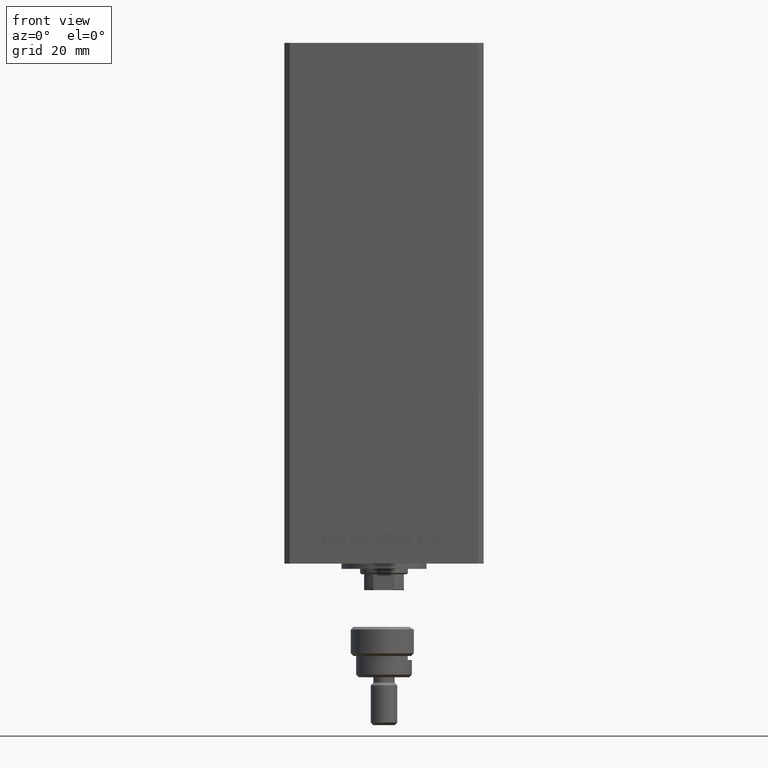
[diagram: clean part render]
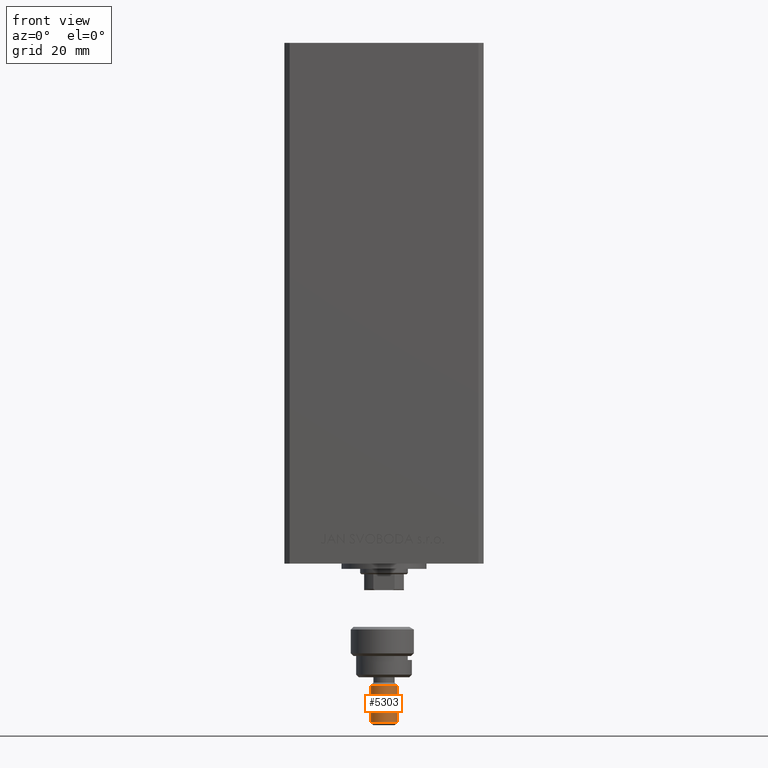
[diagram: same view with one face highlighted and labeled with its STEP entity id]
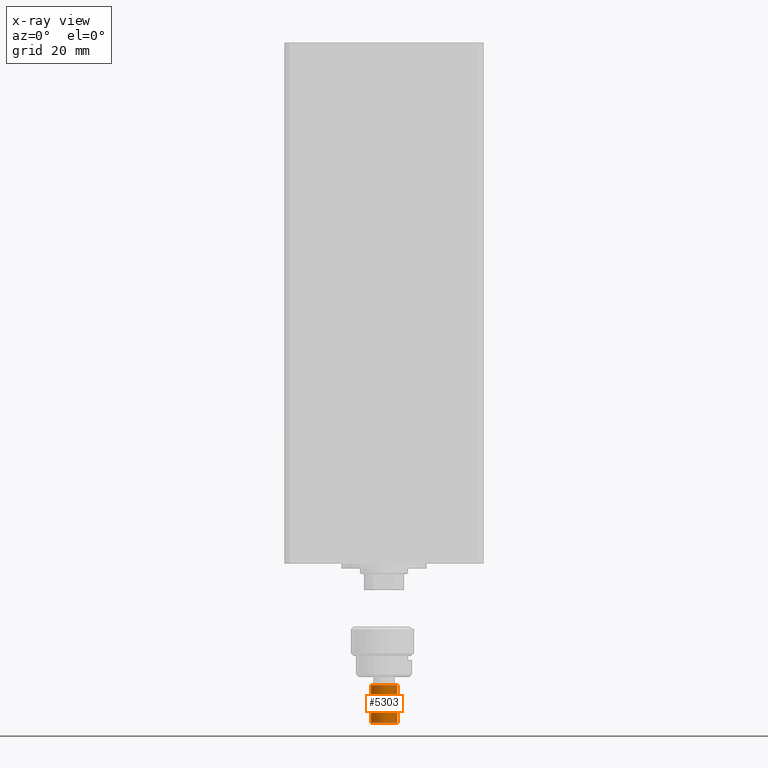
[diagram: x-ray of the same camera — body ghosted, the highlighted face saturated]
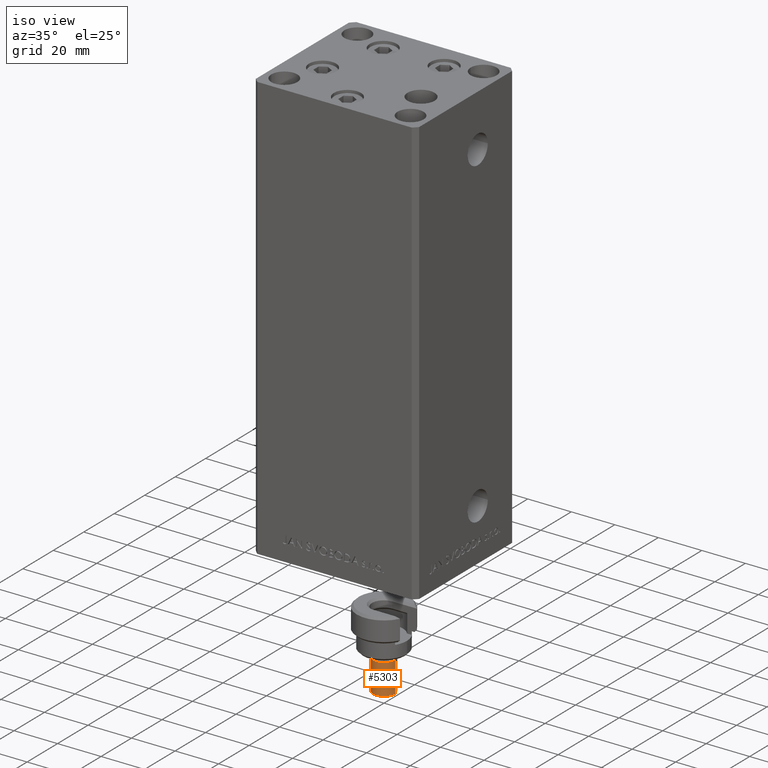
[diagram: same view with one face highlighted and labeled with its STEP entity id]
A machine part, front view. The second image highlights one B-rep face of the part: STEP entity #5303.
The next image is the same camera in x-ray: the body ghosted, the highlighted face saturated — about 0% of this face is hidden behind the body in this view.
A second angle (iso view) of the same face is appended — the face is thin or edge-on in the first view.
In plain terms, the highlighted cylindrical surface (edge-blend (fillet) strip) has radius 5 mm, axis along (0, -0, 1).
Its self-contained STEP definition (entity closure, byte-faithful):
#1125 = CIRCLE ( 'NONE', #29653, 5.000000000000000888 ) ;
#3387 = ORIENTED_EDGE ( 'NONE', *, *, #14462, .T. ) ;
#5303 = ADVANCED_FACE ( 'NONE', ( #14742 ), #26480, .T. ) ;
#7170 = DIRECTION ( 'NONE',  ( -0.000000000000000000, -0.000000000000000000, 1.000000000000000000 ) ) ;
#7841 = ORIENTED_EDGE ( 'NONE', *, *, #36153, .F. ) ;
#8709 = CARTESIAN_POINT ( 'NONE',  ( -5.000000000000000888, 0.000000000000000000, 37.00000000000000000 ) ) ;
#9641 = ORIENTED_EDGE ( 'NONE', *, *, #11643, .T. ) ;
#11643 = EDGE_CURVE ( 'NONE', #16152, #32841, #47389, .T. ) ;
#13053 = CARTESIAN_POINT ( 'NONE',  ( 5.000000000000000888, 6.123233995736767268E-16, 21.99999999999999289 ) ) ;
#13651 = LINE ( 'NONE', #33045, #14411 ) ;
#14083 = CARTESIAN_POINT ( 'NONE',  ( 0.000000000000000000, 0.000000000000000000, 21.99999999999999289 ) ) ;
#14411 = VECTOR ( 'NONE', #48613, 1000.000000000000000 ) ;
#14462 = EDGE_CURVE ( 'NONE', #20651, #16152, #35782, .T. ) ;
#14742 = FACE_OUTER_BOUND ( 'NONE', #19867, .T. ) ;
#16152 = VERTEX_POINT ( 'NONE', #50356 ) ;
#18275 = CARTESIAN_POINT ( 'NONE',  ( 0.000000000000000000, 0.000000000000000000, 36.00000000000000711 ) ) ;
#19404 = VERTEX_POINT ( 'NONE', #29758 ) ;
#19867 = EDGE_LOOP ( 'NONE', ( #7841, #49801, #3387, #9641 ) ) ;
#20651 = VERTEX_POINT ( 'NONE', #32089 ) ;
#21160 = DIRECTION ( 'NONE',  ( -0.000000000000000000, -0.000000000000000000, -1.000000000000000000 ) ) ;
#21861 = DIRECTION ( 'NONE',  ( 0.000000000000000000, 0.000000000000000000, -1.000000000000000000 ) ) ;
#22241 = DIRECTION ( 'NONE',  ( 1.000000000000000000, 0.000000000000000000, 0.000000000000000000 ) ) ;
#22655 = DIRECTION ( 'NONE',  ( -0.000000000000000000, -0.000000000000000000, -1.000000000000000000 ) ) ;
#25390 = AXIS2_PLACEMENT_3D ( 'NONE', #14083, #7170, #22241 ) ;
#25487 = EDGE_CURVE ( 'NONE', #19404, #20651, #1125, .T. ) ;
#26480 = CYLINDRICAL_SURFACE ( 'NONE', #43238, 5.000000000000000888 ) ;
#29653 = AXIS2_PLACEMENT_3D ( 'NONE', #18275, #21861, #33843 ) ;
#29758 = CARTESIAN_POINT ( 'NONE',  ( 5.000000000000000888, 6.123233995736767268E-16, 36.00000000000000711 ) ) ;
#30376 = VECTOR ( 'NONE', #21160, 1000.000000000000000 ) ;
#32089 = CARTESIAN_POINT ( 'NONE',  ( -5.000000000000000888, 0.000000000000000000, 36.00000000000000711 ) ) ;
#32841 = VERTEX_POINT ( 'NONE', #13053 ) ;
#33045 = CARTESIAN_POINT ( 'NONE',  ( 5.000000000000000888, 6.123233995736767268E-16, 37.00000000000000000 ) ) ;
#33843 = DIRECTION ( 'NONE',  ( 1.000000000000000000, 0.000000000000000000, 0.000000000000000000 ) ) ;
#35782 = LINE ( 'NONE', #8709, #30376 ) ;
#36153 = EDGE_CURVE ( 'NONE', #19404, #32841, #13651, .T. ) ;
#38230 = DIRECTION ( 'NONE',  ( -1.000000000000000000, 0.000000000000000000, 0.000000000000000000 ) ) ;
#42039 = CARTESIAN_POINT ( 'NONE',  ( 0.000000000000000000, 0.000000000000000000, 37.00000000000000000 ) ) ;
#43238 = AXIS2_PLACEMENT_3D ( 'NONE', #42039, #22655, #38230 ) ;
#47389 = CIRCLE ( 'NONE', #25390, 5.000000000000000888 ) ;
#48613 = DIRECTION ( 'NONE',  ( -0.000000000000000000, -0.000000000000000000, -1.000000000000000000 ) ) ;
#49801 = ORIENTED_EDGE ( 'NONE', *, *, #25487, .T. ) ;
#50356 = CARTESIAN_POINT ( 'NONE',  ( -5.000000000000000888, 0.000000000000000000, 21.99999999999999289 ) ) ;